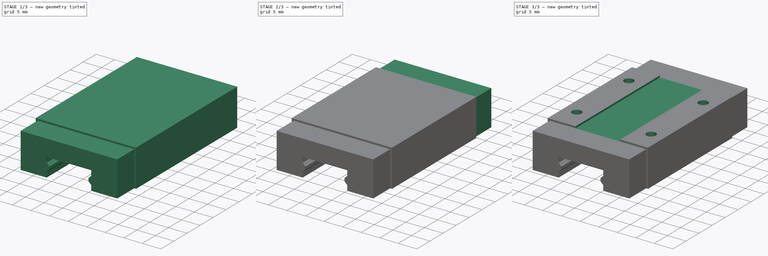
[diagram: build sequence overview — one tinted view per stage of 3, left to right]
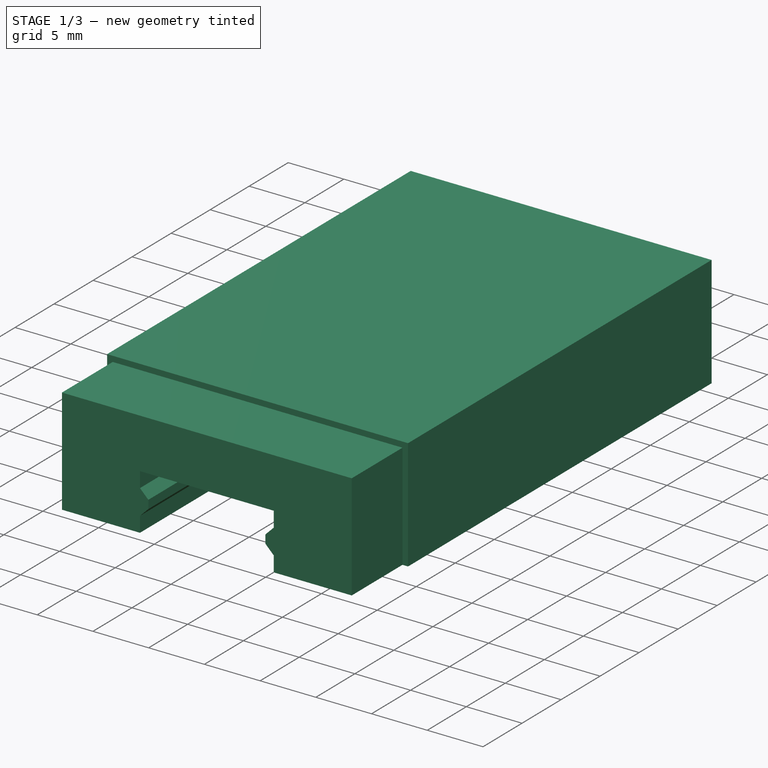
[diagram: stage 1 of 3 — iso view after this stage's code; geometry added in this stage tinted green]
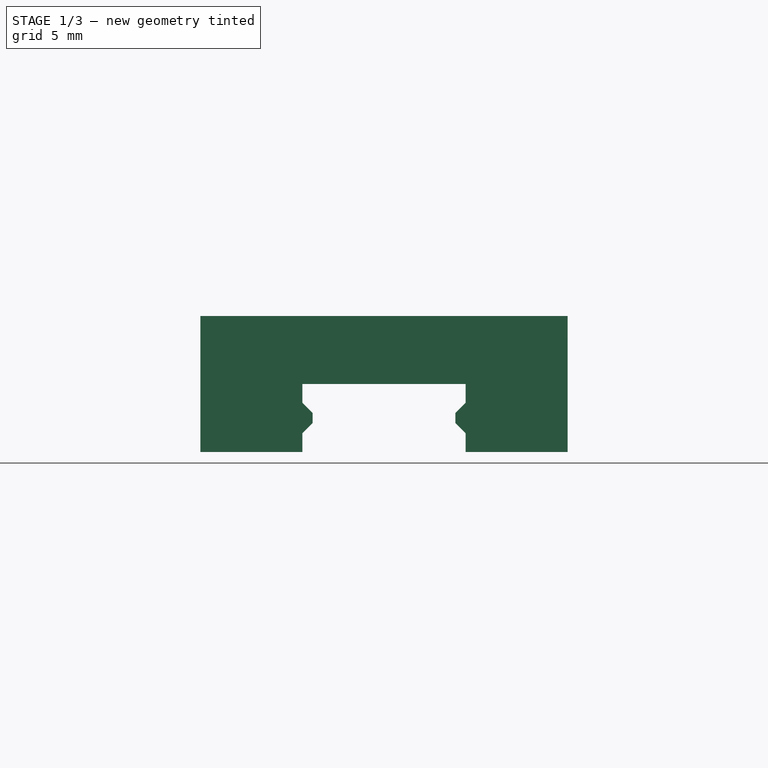
[diagram: stage 1 of 3 — front view after this stage's code; geometry added in this stage tinted green]
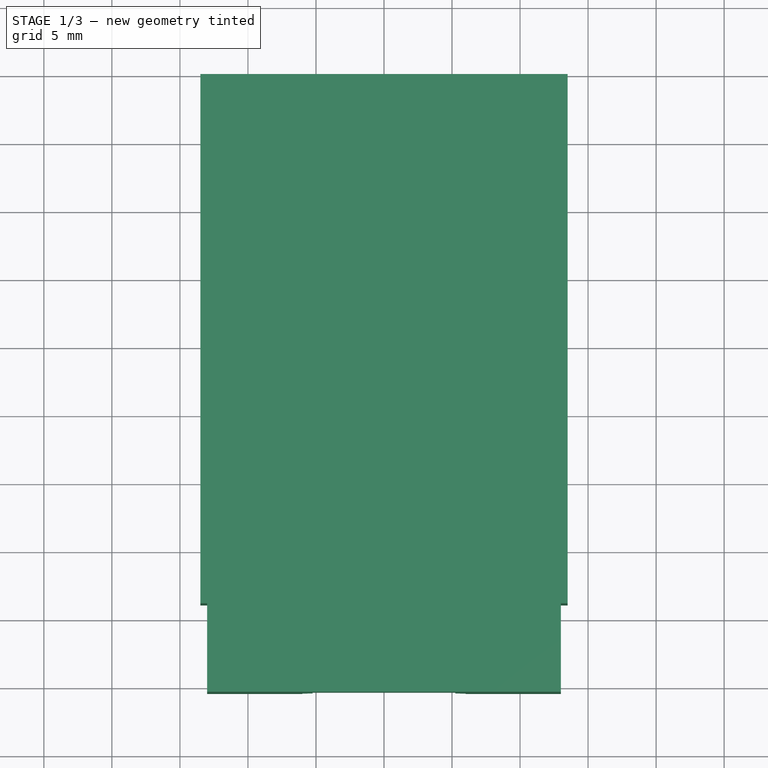
[diagram: stage 1 of 3 — top view after this stage's code; geometry added in this stage tinted green]
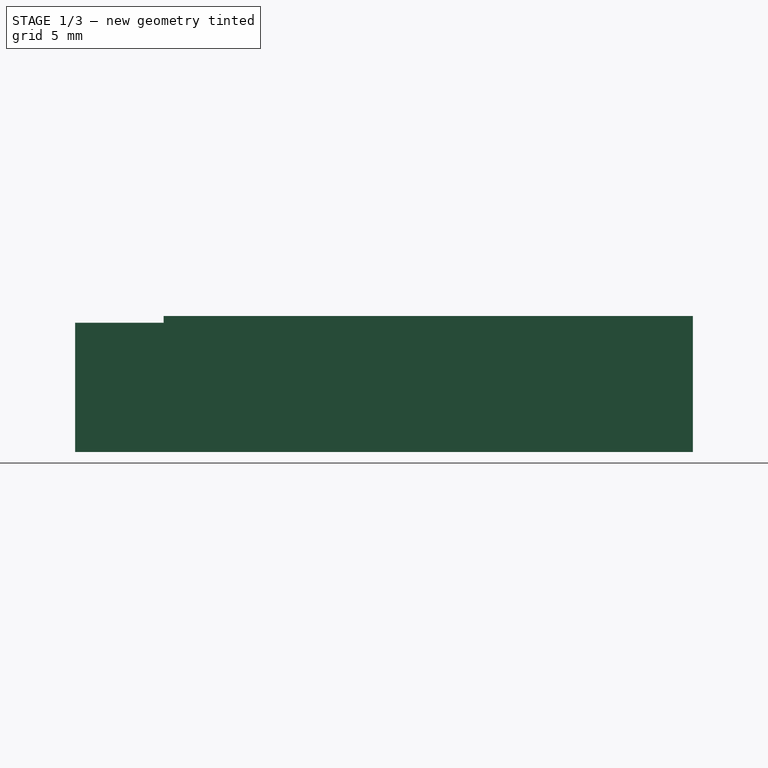
[diagram: stage 1 of 3 — right view after this stage's code; geometry added in this stage tinted green]
FCSTD DOCUMENT  (FreeCAD 1.0R39109 (Git))
Label: linear_slider
License: All rights reserved
LicenseURL: https://en.wikipedia.org/wiki/All_rights_reserved
objects: Sketcher::SketchObject×4, PartDesign::Pocket×2, App::FeaturePython×1, PartDesign::Pad×1, PartDesign::Plane×1, PartDesign::Mirrored×1, PartDesign::Hole×1, PartDesign::Body×1
note: 24 computed .brp shape members not serialized (recipe doc carries the construction recipe); baked Part::Feature solids carry a one-line shape summary decoded from their .brp

FEATURE [App::FeaturePython] dd  # WARN: FeaturePython — macro-defined, semantics opaque (R4)
  B = 20
  B1 = 3.5
  C_1 = 20
  DynamicData = Created with DynamicData (v2.74) workbench. | This is a simple container object built | for holding custom properties.
  Gn = 2
  H1 = 10
  H2 = 2.5
  L1 = 32.4
  Length = 45.4
  N_1 = 7.5
  Width = 27
  Wr = 12
FEATURE [Sketcher::SketchObject] Sketch
  ArcFitTolerance = 1e-06
  AttachmentSupport = -> [XZ_Plane]
  FullyConstrained = true
  MakeInternals = false
  MapMode = 5
  Placement = pos=(0,0,0) rot=(1,0,0;1.5708rad)
  expr: Constraints[42] = 13 - 8
  sketch-geometry (17):
    g0: LineSegment StartX=13.5 StartY=-5 StartZ=0 EndX=13.5 EndY=5 EndZ=0
    g1: LineSegment StartX=13.5 StartY=5 StartZ=0 EndX=-13.5 EndY=5 EndZ=0
    g2: LineSegment StartX=-13.5 StartY=5 StartZ=0 EndX=-13.5 EndY=-5 EndZ=0
    g3: GeomPoint [constr] X=0 Y=0 Z=0
    g4: LineSegment StartX=-13.5 StartY=-5 StartZ=0 EndX=-6 EndY=-5 EndZ=0
    g5: LineSegment StartX=-6 StartY=4e-16 StartZ=0 EndX=6 EndY=4e-16 EndZ=0
    g6: LineSegment StartX=6 StartY=-5 StartZ=0 EndX=13.5 EndY=-5 EndZ=0
    g7: LineSegment StartX=-6 StartY=4e-16 StartZ=0 EndX=-6 EndY=-1.375 EndZ=0
    g8: LineSegment StartX=-6 StartY=-1.375 StartZ=0 EndX=-5.25 EndY=-2.125 EndZ=0
    g9: LineSegment StartX=-5.25 StartY=-2.125 StartZ=0 EndX=-5.25 EndY=-2.875 EndZ=0
    g10: LineSegment StartX=-5.25 StartY=-2.875 StartZ=0 EndX=-6 EndY=-3.625 EndZ=0
    g11: LineSegment StartX=-6 StartY=-3.625 StartZ=0 EndX=-6 EndY=-5 EndZ=0
    g12: LineSegment StartX=6 StartY=4e-16 StartZ=0 EndX=6 EndY=-1.375 EndZ=0
    g13: LineSegment StartX=6 StartY=-1.375 StartZ=0 EndX=5.25 EndY=-2.125 EndZ=0
    g14: LineSegment StartX=5.25 StartY=-2.125 StartZ=0 EndX=5.25 EndY=-2.875 EndZ=0
    g15: LineSegment StartX=5.25 StartY=-2.875 StartZ=0 EndX=6 EndY=-3.625 EndZ=0
    g16: LineSegment StartX=6 StartY=-3.625 StartZ=0 EndX=6 EndY=-5 EndZ=0
  constraints (48):
    c: Coincident(g0,g1)
    c: Coincident(g1,g2)
    c: Vertical(g0)
    c: Vertical(g2)
    c: Horizontal(g1)
    c: Symmetric(g2,g0,g3)
    c: Coincident(g3,g-1)
    c: Distance(g1,g1) = 27
    c: DistanceY(g2,g2) = 10
    c: Coincident(g2,g4)
    c: Horizontal(g4)
    c: Horizontal(g5)
    c: Coincident(g6,g0)
    c: Horizontal(g6)
    c: Equal(g4,g6)
    c: Coincident(g5,g7)
    c: Vertical(g7)
    c: Coincident(g7,g8)
    c: Coincident(g8,g9)
    c: Vertical(g9)
    c: Coincident(g9,g10)
    c: Coincident(g10,g11)
    c: Coincident(g11,g4)
    c: Coincident(g5,g12)
    c: Vertical(g12)
    c: Coincident(g12,g13)
    c: Coincident(g13,g14)
    c: Vertical(g14)
    c: Coincident(g14,g15)
    c: Coincident(g15,g16)
    c: Coincident(g16,g6)
    c: Vertical(g11)
    c: Vertical(g16)
    c: PointOnObject(g7,g11)
    c: PointOnObject(g15,g12)
    c: Equal(g7,g12)
    c: Equal(g11,g16)
    c: Equal(g9,g14)
    c: Equal(g15,g10)
    c: Equal(g8,g13)
    c: PointOnObject(g4,g6)
    c: Distance(g4,g4) = 7.5
    c: Distance(g1,g5) = 5
    c: Equal(g7,g11)
    c: Equal(g10,g8)
    c: Angle(g8,g10) = 1.5708
    c: Distance(g7,g9) = 0.75
    c: Distance(g9,g9) = 0.75
FEATURE [PartDesign::Pad] Pad
  Direction = (0,-1,2e-16)
  Length = 45.4
  Length2 = 10
  Placement = pos=(0,0,0) rot=(1,0,0;1.5708rad)
  Profile = -> Sketch
  ReferenceAxis = -> Sketch [N_Axis]
  Refine = true
  Suppressed = false
  Type = 0
FEATURE [Sketcher::SketchObject] Sketch001
  ArcFitTolerance = 1e-06
  AttachmentSupport = -> [Pad]
  ExternalGeometry = -> [Pad]
  FullyConstrained = true
  MakeInternals = false
  MapMode = 5
  Placement = pos=(0,-45.4,0) rot=(1,0,0;1.5708rad)
  sketch-geometry (8):
    g0: LineSegment StartX=-13.5 StartY=-5 StartZ=0 EndX=-13.5 EndY=5 EndZ=0
    g1: LineSegment StartX=-13.5 StartY=5 StartZ=0 EndX=13.5 EndY=5 EndZ=0
    g2: LineSegment StartX=13.5 StartY=5 StartZ=0 EndX=13.5 EndY=-5 EndZ=0
    g3: LineSegment StartX=-13.5 StartY=-5 StartZ=0 EndX=-13 EndY=-5 EndZ=0
    g4: LineSegment StartX=-13 StartY=-5 StartZ=0 EndX=-13 EndY=4.5 EndZ=0
    g5: LineSegment StartX=-13 StartY=4.5 StartZ=0 EndX=13 EndY=4.5 EndZ=0
    g6: LineSegment StartX=13 StartY=4.5 StartZ=0 EndX=13 EndY=-5 EndZ=0
    g7: LineSegment StartX=13 StartY=-5 StartZ=0 EndX=13.5 EndY=-5 EndZ=0
  constraints (20):
    c: Coincident(g-4,g0)
    c: Coincident(g0,g-4)
    c: Coincident(g0,g1)
    c: Coincident(g1,g-5)
    c: Coincident(g1,g2)
    c: Coincident(g2,g-5)
    c: Coincident(g0,g3)
    c: PointOnObject(g3,g-7)
    c: Coincident(g3,g4)
    c: Vertical(g4)
    c: Coincident(g4,g5)
    c: Horizontal(g5)
    c: Coincident(g5,g6)
    c: PointOnObject(g6,g-6)
    c: Vertical(g6)
    c: Coincident(g6,g7)
    c: Coincident(g7,g2)
    c: Distance(g1,g5) = 0.5
    c: Distance(g0,g4) = 0.5
    c: Distance(g2,g6) = 0.5
FEATURE [PartDesign::Pocket] Pocket
  BaseFeature = -> Pad
  Direction = (0,1,-2e-16)
  Length = 6.5
  Length2 = 5
  Placement = pos=(0,0,0) rot=(1,0,0;1.5708rad)
  Profile = -> Sketch001
  ReferenceAxis = -> Sketch001 [N_Axis]
  Refine = true
  Suppressed = false
  Type = 0
  expr: Length = (dd.Length - dd.L1) / 2
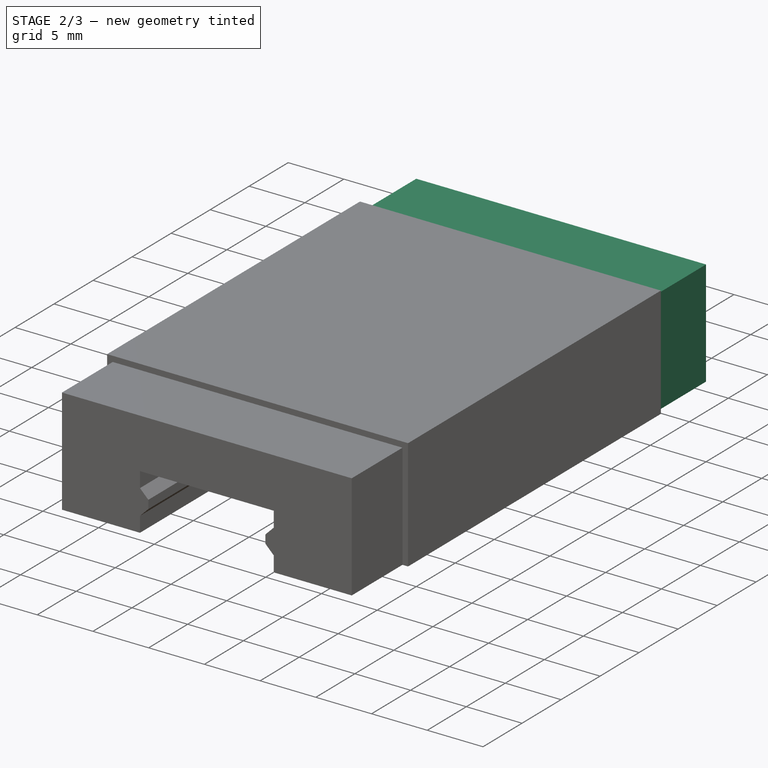
[diagram: stage 2 of 3 — iso view after this stage's code; geometry added in this stage tinted green]
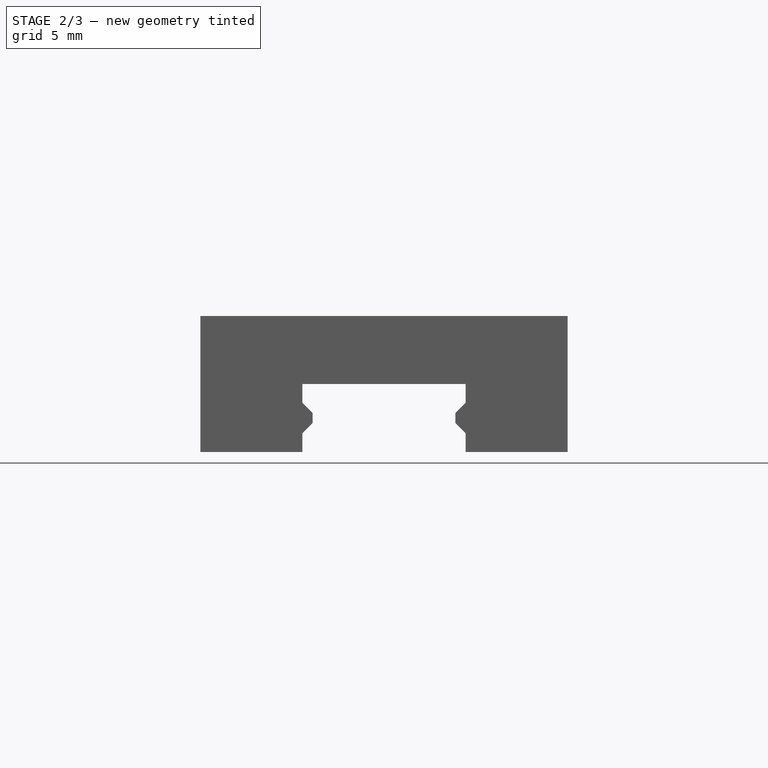
[diagram: stage 2 of 3 — front view after this stage's code; geometry added in this stage tinted green]
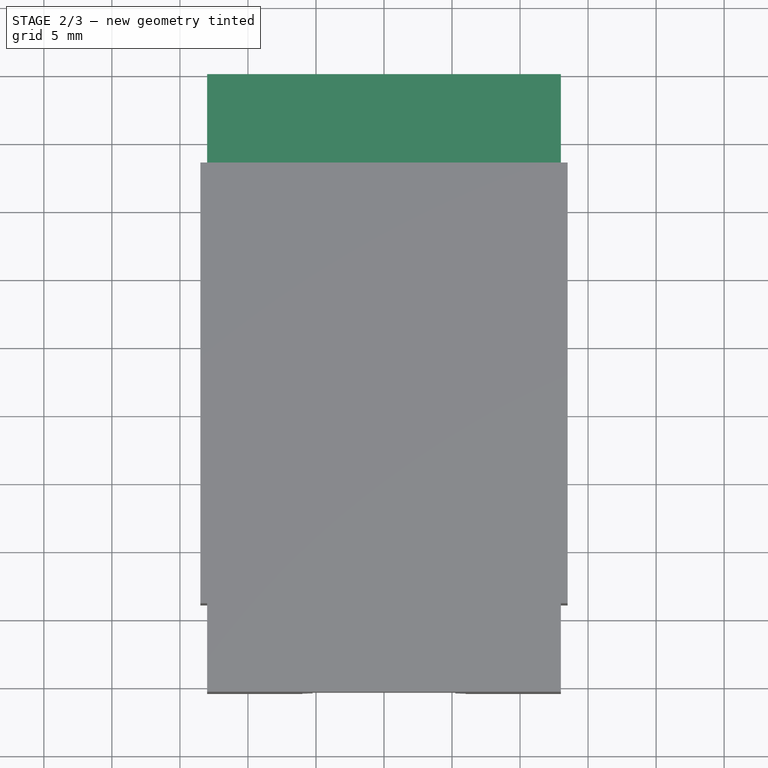
[diagram: stage 2 of 3 — top view after this stage's code; geometry added in this stage tinted green]
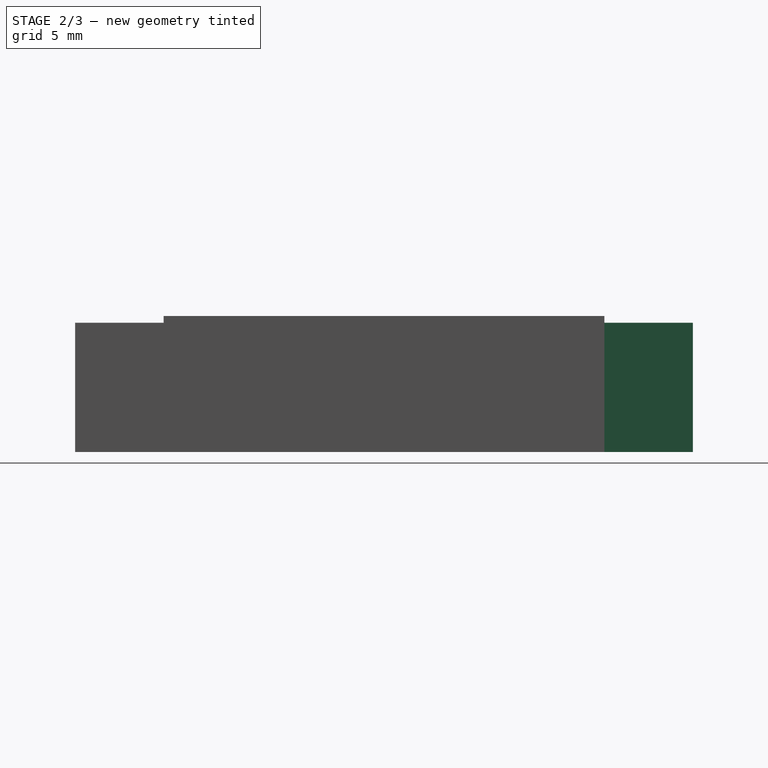
[diagram: stage 2 of 3 — right view after this stage's code; geometry added in this stage tinted green]
FEATURE [PartDesign::Plane] DatumPlane
  AttachmentOffset = pos=(0,0,-22.7) rot=(0,0,1;0rad)
  AttachmentSupport = -> [Pocket]
  Length = 60
  MapMode = 5
  Placement = pos=(0,-22.7,-5e-15) rot=(1,0,0;1.5708rad)
  ResizeMode = 0
  Width = 60
  expr: .AttachmentOffset.Base.z = -(dd.Length / 2)
FEATURE [PartDesign::Mirrored] Mirrored
  BaseFeature = -> Pocket
  MirrorPlane = -> DatumPlane
  Originals = -> [Pocket]
  Placement = pos=(0,0,0) rot=(1,0,0;1.5708rad)
  Refine = true
  Suppressed = false
  TransformMode = 0
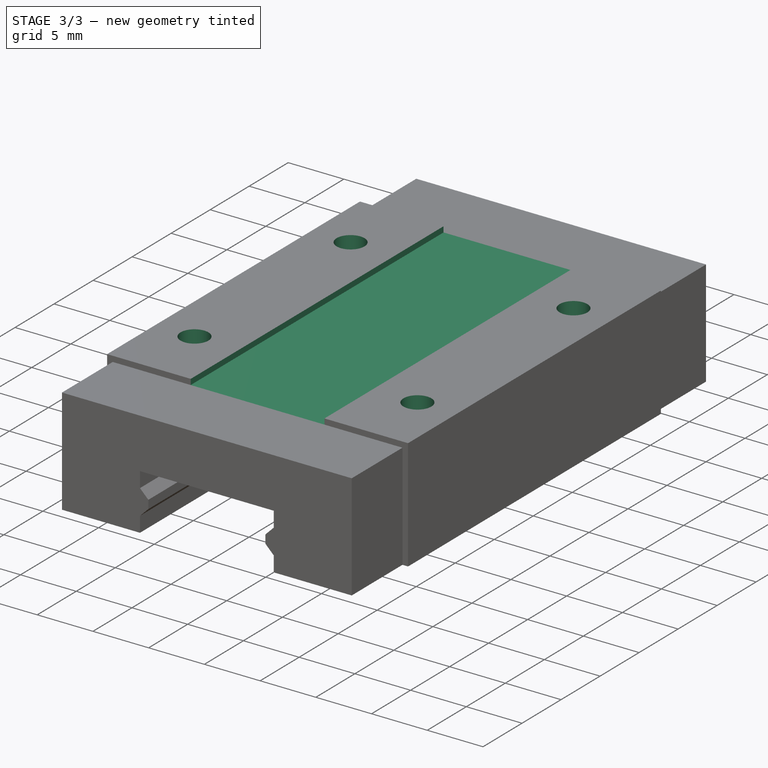
[diagram: stage 3 of 3 — iso view after this stage's code; geometry added in this stage tinted green]
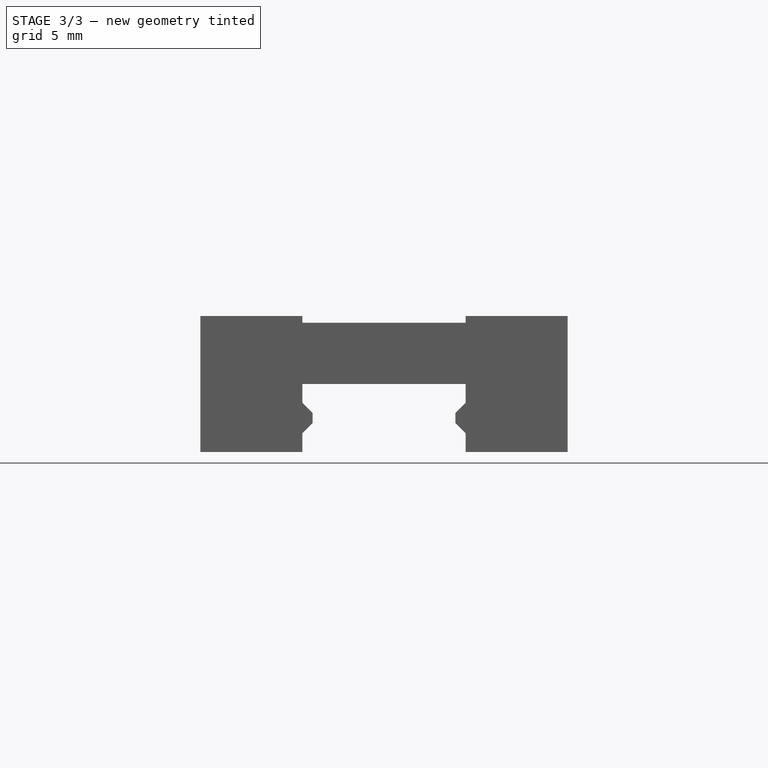
[diagram: stage 3 of 3 — front view after this stage's code; geometry added in this stage tinted green]
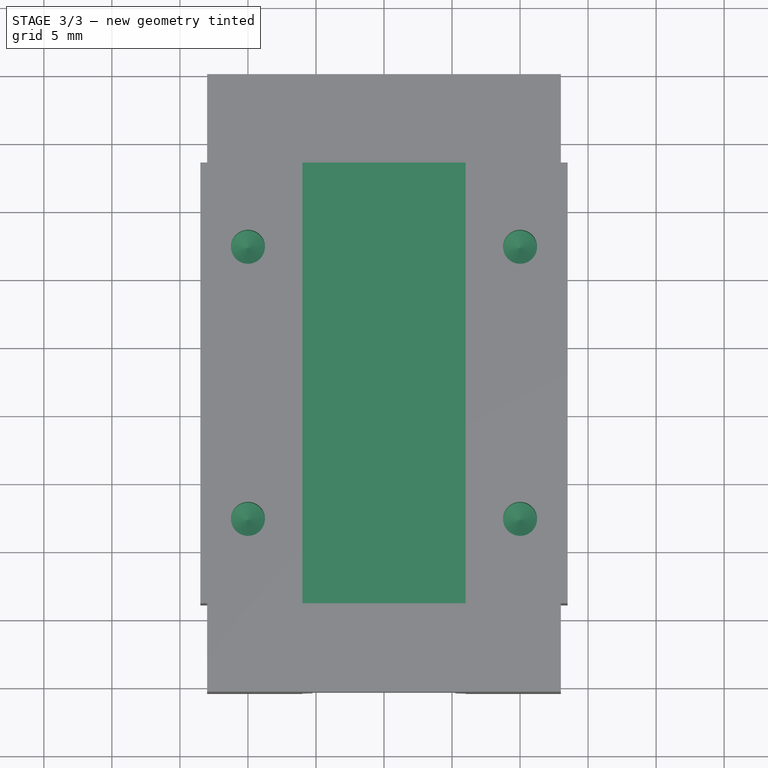
[diagram: stage 3 of 3 — top view after this stage's code; geometry added in this stage tinted green]
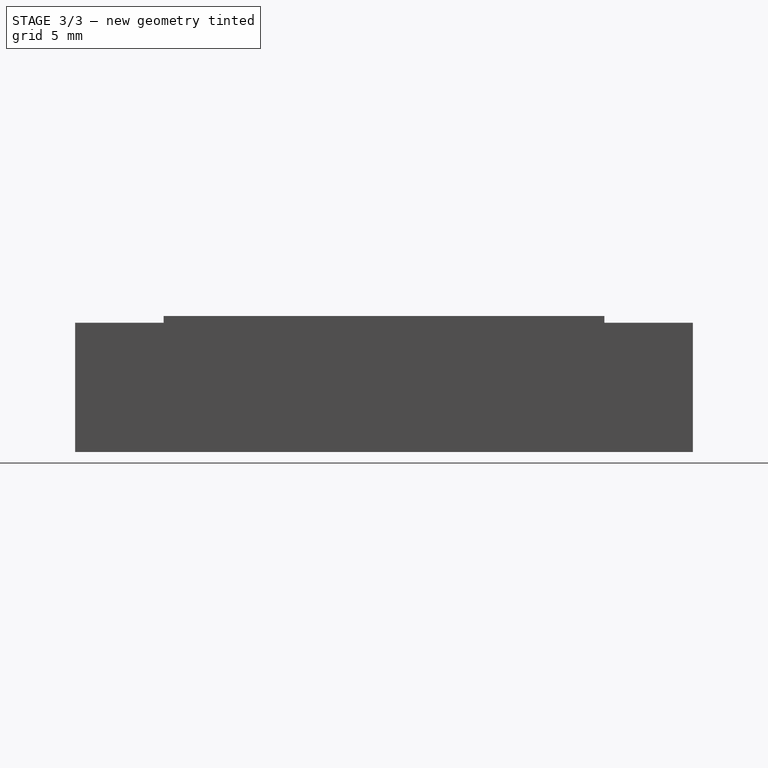
[diagram: stage 3 of 3 — right view after this stage's code; geometry added in this stage tinted green]
FEATURE [Sketcher::SketchObject] Sketch002
  ArcFitTolerance = 1e-06
  AttachmentSupport = -> [Mirrored]
  ExternalGeometry = -> [Mirrored]
  FullyConstrained = true
  MakeInternals = false
  MapMode = 5
  Placement = pos=(0,2.2e-15,5) rot=(0,0,1;3.14159rad)
  expr: Constraints[10] = dd.Wr
  expr: Constraints[11] = dd.N_1
  sketch-geometry (4):
    g0: LineSegment StartX=-6 StartY=38.9 StartZ=0 EndX=-6 EndY=6.5 EndZ=0
    g1: LineSegment StartX=-6 StartY=6.5 StartZ=0 EndX=6 EndY=6.5 EndZ=0
    g2: LineSegment StartX=6 StartY=6.5 StartZ=0 EndX=6 EndY=38.9 EndZ=0
    g3: LineSegment StartX=6 StartY=38.9 StartZ=0 EndX=-6 EndY=38.9 EndZ=0
  constraints (12):
    c: Coincident(g0,g1)
    c: Coincident(g1,g2)
    c: Coincident(g2,g3)
    c: Coincident(g3,g0)
    c: Vertical(g0)
    c: Vertical(g2)
    c: Horizontal(g1)
    c: Horizontal(g3)
    c: PointOnObject(g0,g-3)
    c: PointOnObject(g1,g-5)
    c: Distance(g3,g3) = 12
    c: Distance(g-6,g0) = 7.5
FEATURE [PartDesign::Pocket] Pocket001
  BaseFeature = -> Mirrored
  Direction = (0,0,-1)
  Length = 0.5
  Length2 = 5
  Placement = pos=(0,0,0) rot=(1,0,0;1.5708rad)
  Profile = -> Sketch002
  ReferenceAxis = -> Sketch002 [N_Axis]
  Refine = true
  Suppressed = false
  Type = 0
FEATURE [Sketcher::SketchObject] Sketch003
  ArcFitTolerance = 1e-06
  AttachmentSupport = -> [Pocket001]
  ExternalGeometry = -> [Pocket001]
  FullyConstrained = true
  MakeInternals = false
  MapMode = 5
  Placement = pos=(0,2.2e-15,5) rot=(0,0,1;3.14159rad)
  expr: Constraints[10] = (dd.L1 - dd.C_1) / 2
  expr: Constraints[11] = (dd.Width - dd.B) / 2
  expr: Constraints[8] = (dd.L1 - dd.C_1) / 2
  expr: Constraints[9] = (dd.Width - dd.B) / 2
  sketch-geometry (8):
    g0: LineSegment [constr] StartX=-10 StartY=32.7 StartZ=0 EndX=-10 EndY=12.7 EndZ=0
    g1: LineSegment [constr] StartX=-10 StartY=12.7 StartZ=0 EndX=10 EndY=12.7 EndZ=0
    g2: LineSegment [constr] StartX=10 StartY=12.7 StartZ=0 EndX=10 EndY=32.7 EndZ=0
    g3: LineSegment [constr] StartX=10 StartY=32.7 StartZ=0 EndX=-10 EndY=32.7 EndZ=0
    g4: Circle CenterX=-10 CenterY=32.7 CenterZ=0 NormalX=0 NormalY=0 NormalZ=1 AngleXU=0 Radius=1.5
    g5: Circle CenterX=10 CenterY=32.7 CenterZ=0 NormalX=0 NormalY=0 NormalZ=1 AngleXU=0 Radius=1.5
    g6: Circle CenterX=-10 CenterY=12.7 CenterZ=0 NormalX=0 NormalY=0 NormalZ=1 AngleXU=0 Radius=1.5
    g7: Circle CenterX=10 CenterY=12.7 CenterZ=0 NormalX=0 NormalY=0 NormalZ=1 AngleXU=0 Radius=1.5
  constraints (20):
    c: Coincident(g0,g1)
    c: Coincident(g1,g2)
    c: Coincident(g2,g3)
    c: Coincident(g3,g0)
    c: Vertical(g0)
    c: Vertical(g2)
    c: Horizontal(g1)
    c: Horizontal(g3)
    c: Distance(g-4,g3) = 6.2
    c: Distance(g-8,g0) = 3.5
    c: Distance(g-5,g1) = 6.2
    c: Distance(g-7,g2) = 3.5
    c: Coincident(g4,g0)
    c: Coincident(g5,g2)
    c: Coincident(g6,g0)
    c: Coincident(g7,g1)
    c: Equal(g4,g5)
    c: Equal(g5,g7)
    c: Equal(g7,g6)
    c: Diameter(g4) = 3
FEATURE [PartDesign::Hole] Hole
  BaseFeature = -> Pocket001
  CustomThreadClearance = 0
  Depth = 3.5
  DepthType = 0
  Diameter = 2.5
  DrillForDepth = false
  DrillPoint = 1
  DrillPointAngle = 118
  HoleCutCountersinkAngle = 90
  HoleCutCustomValues = false
  HoleCutDepth = 0
  HoleCutDiameter = 6.1
  HoleCutType = 0
  ModelThread = false
  Placement = pos=(0,0,0) rot=(1,0,0;1.5708rad)
  Profile = -> Sketch003
  Refine = true
  Suppressed = false
  Tapered = false
  TaperedAngle = 90
  ThreadClass = 0
  ThreadDepth = 3.5
  ThreadDepthType = 0
  ThreadDirection = 0
  ThreadFit = 0
  ThreadSize = 9
  ThreadType = 1
  Threaded = true
  UseCustomThreadClearance = false
FEATURE [PartDesign::Body] Body
  AllowCompound = false
  Group = -> [Sketch,Pad,Sketch001,Pocket,DatumPlane,Mirrored,Sketch002,Pocket001,Sketch003,Hole]
  Origin = -> Origin
  Tip = -> Hole
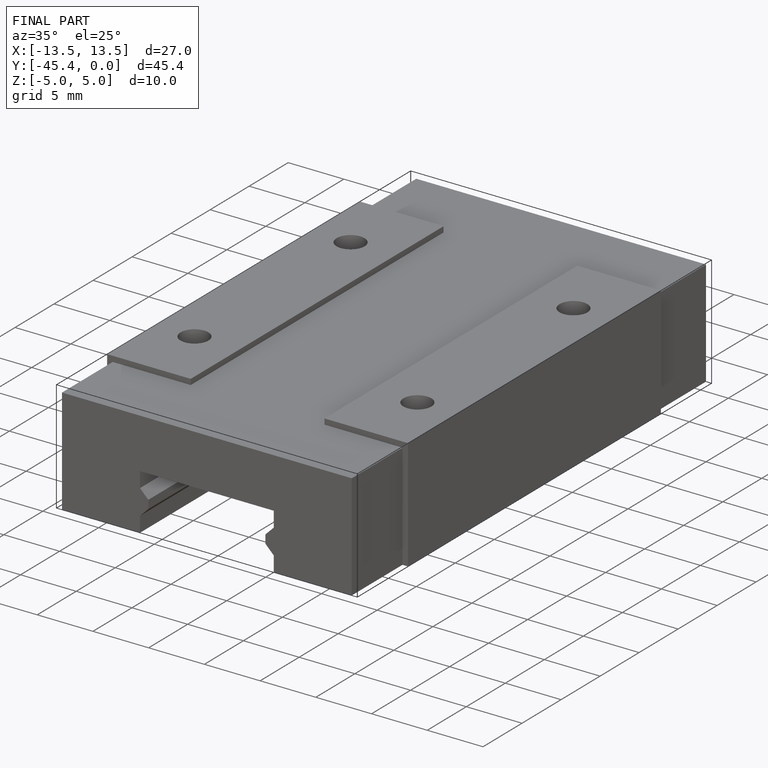
[diagram: finished part — iso view with bounding-box wireframe]
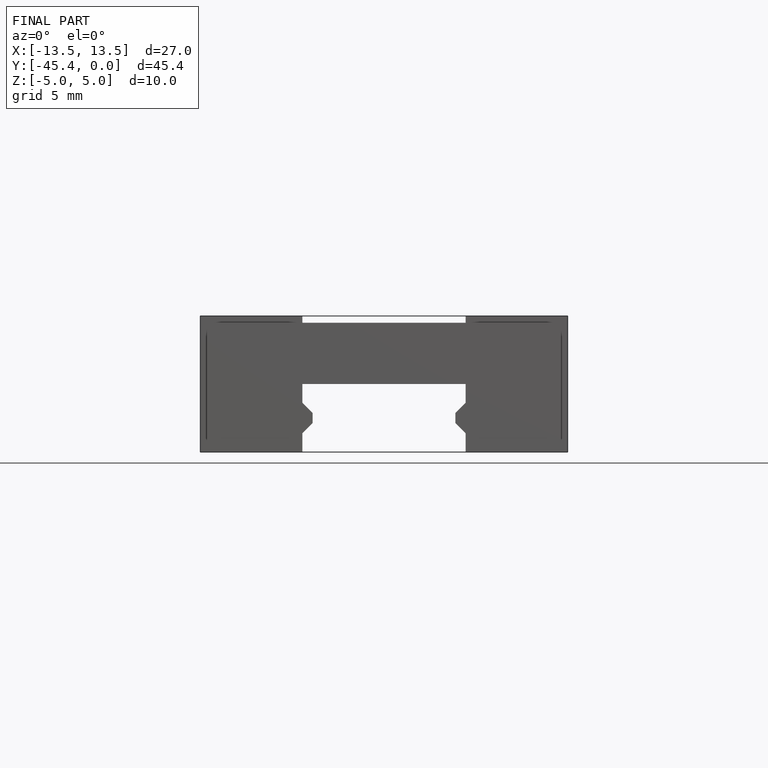
[diagram: finished part — front view with bounding-box wireframe]
